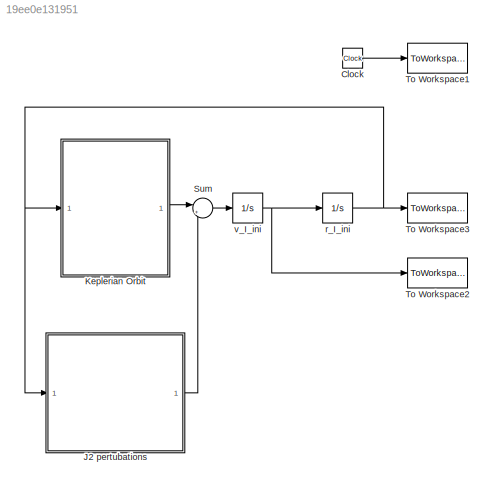
MODEL slx_19ee0e131951
KIND model
CONFIG AbsTol = auto
CONFIG EnableMultiTasking = on
CONFIG FixedStep = auto
CONFIG MaxStep = 0.1
CONFIG MinStep = auto
CONFIG RelTol = 1e-6
CONFIG SampleTimeConstraint = Unconstrained
CONFIG SolverName = ode45
CONFIG StartTime = 0.0
CONFIG StopTime = T
BLOCK [Clock] Clock
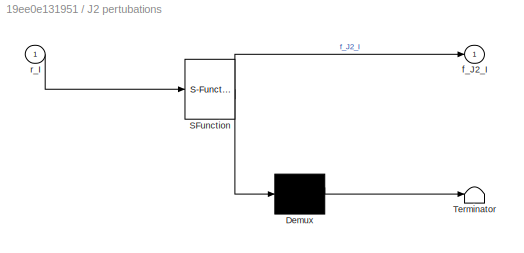
BLOCK [SubSystem] J2 pertubations
  ErrorFcn = Stateflow.Translate.translate
  LibrarySourceBlock = simulink/User-Defined\nFunctions/MATLAB Function
  PermitHierarchicalResolution = ExplicitOnly
  SFBlockType = MATLAB Function
  TreatAsAtomicUnit = on
BLOCK [Demux] J2 pertubations/ Demux 
  Outputs = 1
BLOCK [S-Function] J2 pertubations/ SFunction 
  EnableBusSupport = on
  FunctionName = sf_sfun
  Parameters = J_2,mu,rE
  PortCounts = [1 2]
  SFcnIsStateOwnerBlock = off
  SFunctionDeploymentMode = off
  Tag = Stateflow S-Function 1
BLOCK [Terminator] J2 pertubations/ Terminator 
BLOCK [Outport] J2 pertubations/f_J2_I
BLOCK [Inport] J2 pertubations/r_I
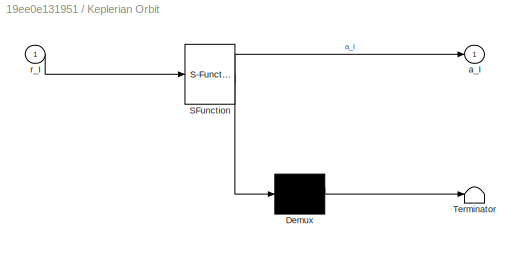
BLOCK [SubSystem] Keplerian Orbit
  ErrorFcn = Stateflow.Translate.translate
  PermitHierarchicalResolution = ExplicitOnly
  SFBlockType = MATLAB Function
  TreatAsAtomicUnit = on
BLOCK [Demux] Keplerian Orbit/ Demux 
  Outputs = 1
BLOCK [S-Function] Keplerian Orbit/ SFunction 
  EnableBusSupport = on
  FunctionName = sf_sfun
  Parameters = mu
  PortCounts = [1 2]
  SFcnIsStateOwnerBlock = off
  SFunctionDeploymentMode = off
  Tag = Stateflow S-Function 2
BLOCK [Terminator] Keplerian Orbit/ Terminator 
BLOCK [Outport] Keplerian Orbit/a_I
BLOCK [Inport] Keplerian Orbit/r_I
BLOCK [Sum] Sum
  Inputs = |++
BLOCK [ToWorkspace] To Workspace1
  MaxDataPoints = inf
  SampleTime = -1
  VariableName = t
BLOCK [ToWorkspace] To Workspace2
  MaxDataPoints = inf
  SampleTime = -1
  Save2DSignal = 2-D array (concatenate along first dimension)
  VariableName = v_I
BLOCK [ToWorkspace] To Workspace3
  MaxDataPoints = inf
  SampleTime = -1
  Save2DSignal = 2-D array (concatenate along first dimension)
  VariableName = r_I
BLOCK [Integrator] r_I_ini
  InitialCondition = r_I_ini
BLOCK [Integrator] v_I_ini
  InitialCondition = v_I_ini
LINE Clock:1 -> To Workspace1:1
LINE J2 pertubations:1 -> Sum:2
LINE Keplerian Orbit:1 -> Sum:1
LINE Sum:1 -> v_I_ini:1
NET r_I_ini:1 -> J2 pertubations:1, Keplerian Orbit:1, To Workspace3:1
NET v_I_ini:1 -> To Workspace2:1, r_I_ini:1
note: NET lines group one-source signal fan-out (src -> all destinations, sorted); 1:1 wires keep LINE
CHART J2 pertubations states=1 transitions=1
  STATE_LABEL 'eML_blk_kernel()'
  STATE_LABEL 'SCRIPT:\nfunction f_J2_I =  J2P(rE, J_2, mu, r_I)\n\nf_J2_I = 3*mu*J_2*rE^2/(2*(norm(r_I)^5))...\n    *(...\n    (5*(r_I(3)^2)/(norm(r_I)^2)-1)*r_I - 2*[0; 0; r_I(3)]...\n    );\n\nend\n'
CHART Keplerian Orbit states=1 transitions=1
  STATE_LABEL 'eML_blk_kernel()'
  STATE_LABEL 'SCRIPT:\nfunction  a_I =  TBP(r_I, mu)\n\n% ---------------------------------------------------------------\n% TBP\n% ---------------------------------------------------------------\n% Description:\n% Compute the spacecraft acceleration in ECI, using the two-body\n% equation of motion.\n% ---------------------------------------------------------------\n% Inputs:\n% r_I => components of r in ECI (3 x 1 matrix...<+572ch>'
CHART  states=0 transitions=0
CHART  states=0 transitions=0
